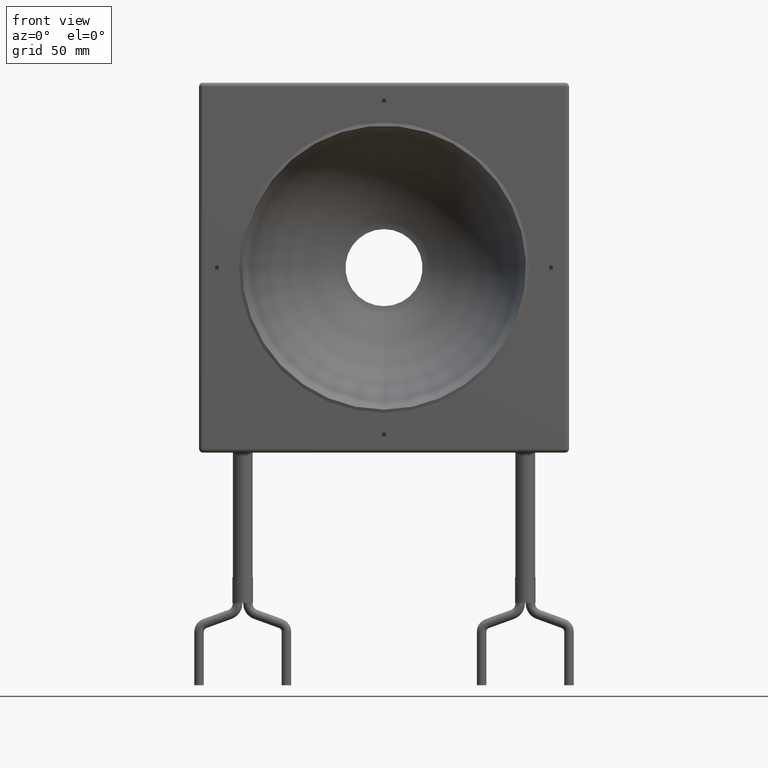
[diagram: clean part render]
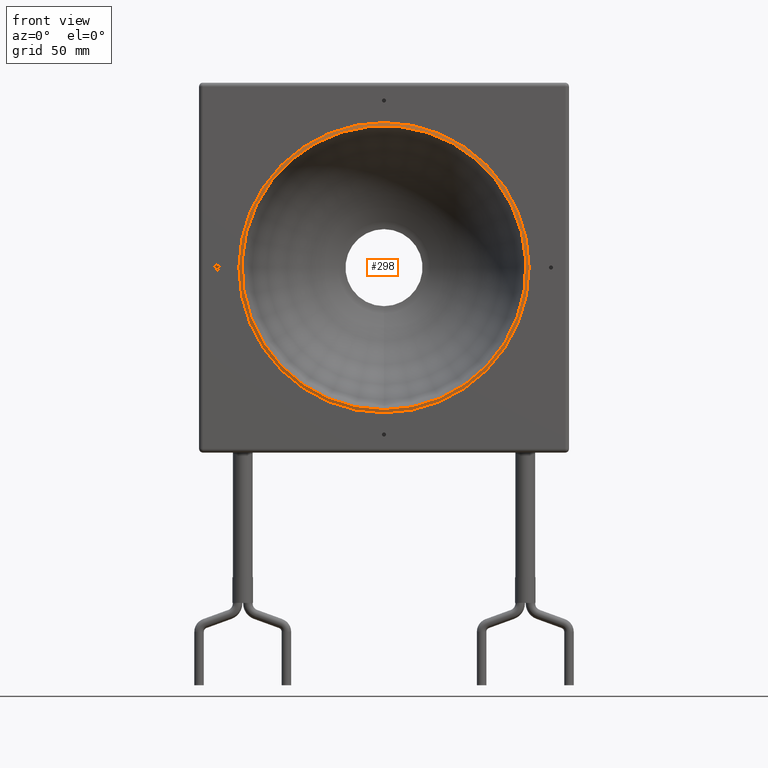
[diagram: same view with one face highlighted and labeled with its STEP entity id]
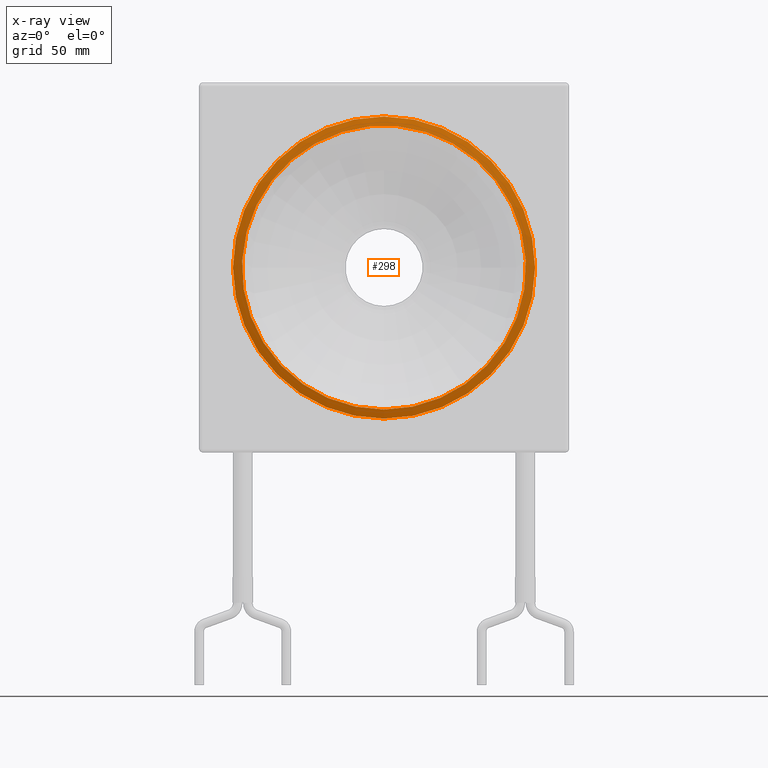
[diagram: x-ray of the same camera — body ghosted, the highlighted face saturated]
A machine part, front view. The second image highlights one B-rep face of the part: STEP entity #298.
The next image is the same camera in x-ray: the body ghosted, the highlighted face saturated — about 0% of this face is hidden behind the body in this view.
In plain terms, the highlighted conical surface has half-angle 72.757 deg.
Its self-contained STEP definition (entity closure, byte-faithful):
#242 = CIRCLE ( 'NONE', #1597, 55.27268775814418000 ) ;
#247 = DIRECTION ( 'NONE',  ( -0.0000000000000000000, -1.000000000000000000, -0.0000000000000000000 ) ) ;
#258 = VERTEX_POINT ( 'NONE', #1812 ) ;
#298 = ADVANCED_FACE ( 'NONE', ( #413, #1568 ), #310, .T. ) ;
#310 = CONICAL_SURFACE ( 'NONE', #1698, 59.02142022163516100, 1.269857631029872400 ) ;
#317 = EDGE_LOOP ( 'NONE', ( #465 ) ) ;
#326 = CARTESIAN_POINT ( 'NONE',  ( 0.0000000000000000000, 5.314459103604974600, -3.330669073875470600E-016 ) ) ;
#409 = CIRCLE ( 'NONE', #1213, 58.81025406850663700 ) ;
#413 = FACE_OUTER_BOUND ( 'NONE', #317, .T. ) ;
#443 = EDGE_LOOP ( 'NONE', ( #1708 ) ) ;
#465 = ORIENTED_EDGE ( 'NONE', *, *, #1254, .F. ) ;
#491 = DIRECTION ( 'NONE',  ( 0.0000000000000000000, 0.0000000000000000000, -1.000000000000000000 ) ) ;
#698 = DIRECTION ( 'NONE',  ( 0.0000000000000000000, 0.0000000000000000000, 1.000000000000000000 ) ) ;
#726 = VERTEX_POINT ( 'NONE', #1246 ) ;
#995 = DIRECTION ( 'NONE',  ( 0.0000000000000000000, 1.000000000000000000, 0.0000000000000000000 ) ) ;
#1150 = CARTESIAN_POINT ( 'NONE',  ( 0.0000000000000000000, 4.216522097975957500, 0.0000000000000000000 ) ) ;
#1213 = AXIS2_PLACEMENT_3D ( 'NONE', #326, #1382, #491 ) ;
#1246 = CARTESIAN_POINT ( 'NONE',  ( 0.0000000000000000000, 5.314459103604974600, -58.81025406850663700 ) ) ;
#1254 = EDGE_CURVE ( 'NONE', #726, #726, #409, .T. ) ;
#1297 = DIRECTION ( 'NONE',  ( 0.0000000000000000000, 0.0000000000000000000, -1.000000000000000000 ) ) ;
#1382 = DIRECTION ( 'NONE',  ( 0.0000000000000000000, 1.000000000000000000, 0.0000000000000000000 ) ) ;
#1558 = EDGE_CURVE ( 'NONE', #258, #258, #242, .T. ) ;
#1568 = FACE_BOUND ( 'NONE', #443, .T. ) ;
#1597 = AXIS2_PLACEMENT_3D ( 'NONE', #1150, #247, #1297 ) ;
#1698 = AXIS2_PLACEMENT_3D ( 'NONE', #1719, #995, #698 ) ;
#1708 = ORIENTED_EDGE ( 'NONE', *, *, #1558, .F. ) ;
#1719 = CARTESIAN_POINT ( 'NONE',  ( 0.0000000000000000000, 5.379997700910412700, 0.0000000000000000000 ) ) ;
#1812 = CARTESIAN_POINT ( 'NONE',  ( 0.0000000000000000000, 4.216522097975957500, -55.27268775814418000 ) ) ;